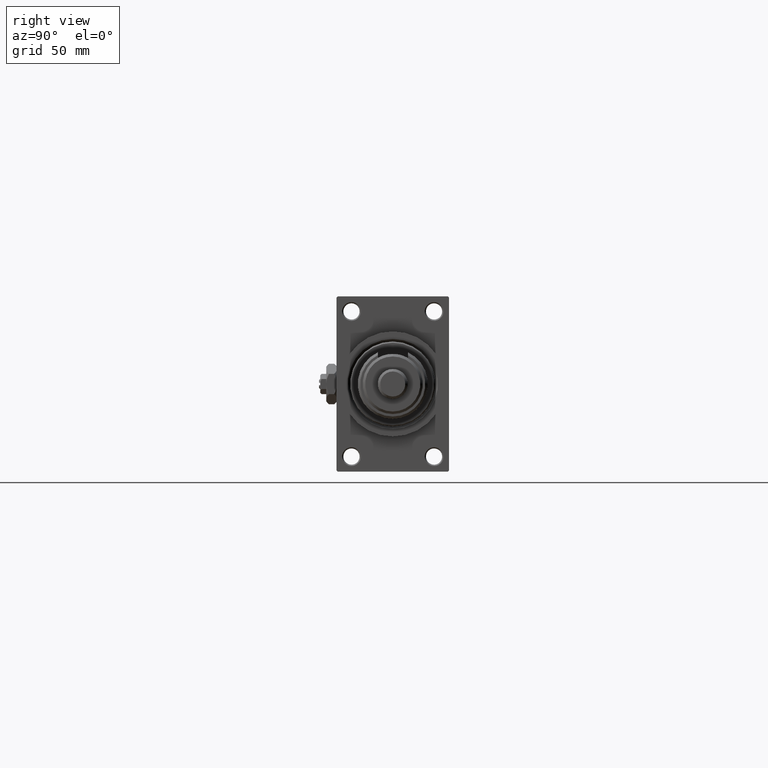
[diagram: clean part render]
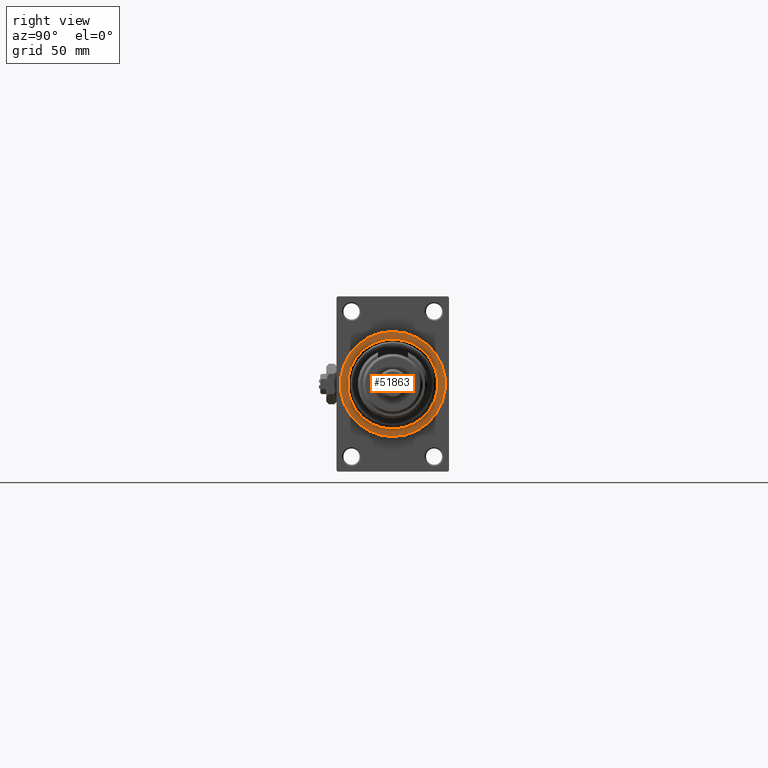
[diagram: same view with one face highlighted and labeled with its STEP entity id]
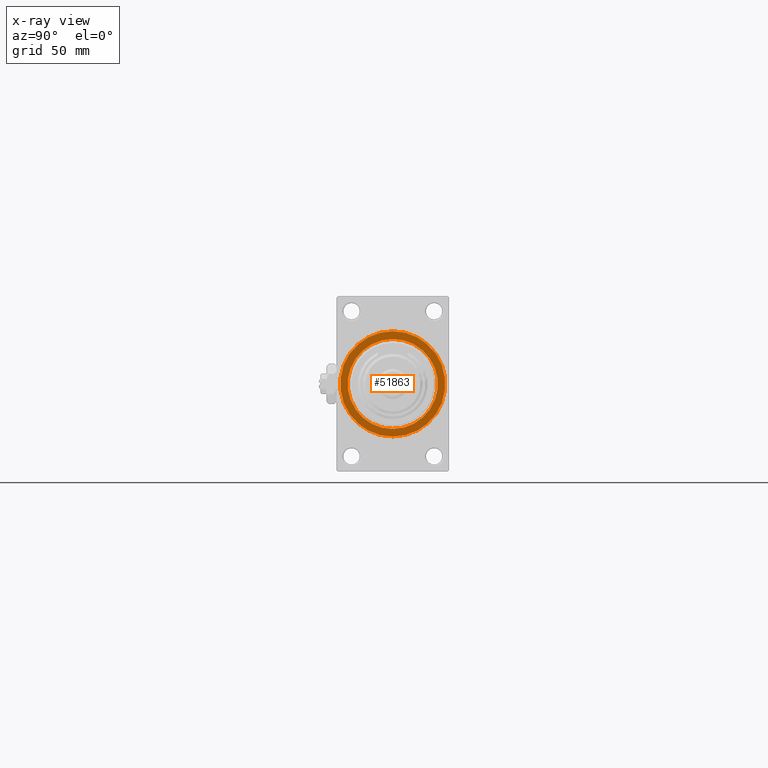
[diagram: x-ray of the same camera — body ghosted, the highlighted face saturated]
A machine part, right view. The second image highlights one B-rep face of the part: STEP entity #51863.
The next image is the same camera in x-ray: the body ghosted, the highlighted face saturated — about 0% of this face is hidden behind the body in this view.
In plain terms, the highlighted planar face has unit normal (1, 0, 0).
Its self-contained STEP definition (entity closure, byte-faithful):
#1512 = VERTEX_POINT ( 'NONE', #48234 ) ;
#1642 = EDGE_CURVE ( 'NONE', #10401, #1512, #5599, .T. ) ;
#2512 = DIRECTION ( 'NONE',  ( 0.000000000000000000, 0.000000000000000000, -1.000000000000000000 ) ) ;
#3147 = CARTESIAN_POINT ( 'NONE',  ( 183.0000000000000284, 0.000000000000000000, 0.000000000000000000 ) ) ;
#3346 = DIRECTION ( 'NONE',  ( 0.000000000000000000, 0.000000000000000000, -1.000000000000000000 ) ) ;
#3763 = VERTEX_POINT ( 'NONE', #41296 ) ;
#4001 = PLANE ( 'NONE',  #12390 ) ;
#4521 = FACE_BOUND ( 'NONE', #39200, .T. ) ;
#5229 = DIRECTION ( 'NONE',  ( -1.000000000000000000, -0.000000000000000000, -0.000000000000000000 ) ) ;
#5599 = CIRCLE ( 'NONE', #24092, 18.00000000000007105 ) ;
#6608 = AXIS2_PLACEMENT_3D ( 'NONE', #27561, #43548, #3346 ) ;
#9507 = EDGE_CURVE ( 'NONE', #15387, #3763, #14165, .T. ) ;
#10401 = VERTEX_POINT ( 'NONE', #51827 ) ;
#10672 = EDGE_CURVE ( 'NONE', #3763, #15387, #29339, .T. ) ;
#10902 = CARTESIAN_POINT ( 'NONE',  ( 183.0000000000000284, 2.571758278209441661E-15, -21.00000000000000000 ) ) ;
#12390 = AXIS2_PLACEMENT_3D ( 'NONE', #47910, #27955, #44714 ) ;
#14068 = ORIENTED_EDGE ( 'NONE', *, *, #9507, .T. ) ;
#14165 = CIRCLE ( 'NONE', #6608, 21.00000000000000000 ) ;
#15387 = VERTEX_POINT ( 'NONE', #10902 ) ;
#15496 = DIRECTION ( 'NONE',  ( 0.000000000000000000, 0.000000000000000000, -1.000000000000000000 ) ) ;
#15672 = ORIENTED_EDGE ( 'NONE', *, *, #47544, .T. ) ;
#16815 = CARTESIAN_POINT ( 'NONE',  ( 183.0000000000000284, 0.000000000000000000, 0.000000000000000000 ) ) ;
#20177 = ORIENTED_EDGE ( 'NONE', *, *, #1642, .T. ) ;
#24092 = AXIS2_PLACEMENT_3D ( 'NONE', #3147, #47829, #15496 ) ;
#27561 = CARTESIAN_POINT ( 'NONE',  ( 183.0000000000000284, 0.000000000000000000, 0.000000000000000000 ) ) ;
#27955 = DIRECTION ( 'NONE',  ( 1.000000000000000000, 0.000000000000000000, 0.000000000000000000 ) ) ;
#29339 = CIRCLE ( 'NONE', #50272, 21.00000000000000000 ) ;
#30665 = EDGE_LOOP ( 'NONE', ( #33784, #14068 ) ) ;
#31895 = FACE_OUTER_BOUND ( 'NONE', #30665, .T. ) ;
#33784 = ORIENTED_EDGE ( 'NONE', *, *, #10672, .T. ) ;
#34069 = CARTESIAN_POINT ( 'NONE',  ( 183.0000000000000284, 0.000000000000000000, 0.000000000000000000 ) ) ;
#35279 = CIRCLE ( 'NONE', #48691, 18.00000000000007105 ) ;
#39200 = EDGE_LOOP ( 'NONE', ( #15672, #20177 ) ) ;
#40462 = DIRECTION ( 'NONE',  ( 0.000000000000000000, 0.000000000000000000, -1.000000000000000000 ) ) ;
#41296 = CARTESIAN_POINT ( 'NONE',  ( 183.0000000000000284, 0.000000000000000000, 21.00000000000000000 ) ) ;
#42436 = DIRECTION ( 'NONE',  ( 1.000000000000000000, 0.000000000000000000, 0.000000000000000000 ) ) ;
#43548 = DIRECTION ( 'NONE',  ( 1.000000000000000000, 0.000000000000000000, 0.000000000000000000 ) ) ;
#44714 = DIRECTION ( 'NONE',  ( 0.000000000000000000, 0.000000000000000000, -1.000000000000000000 ) ) ;
#47544 = EDGE_CURVE ( 'NONE', #1512, #10401, #35279, .T. ) ;
#47829 = DIRECTION ( 'NONE',  ( -1.000000000000000000, -0.000000000000000000, -0.000000000000000000 ) ) ;
#47910 = CARTESIAN_POINT ( 'NONE',  ( 183.0000000000000284, 0.000000000000000000, 0.000000000000000000 ) ) ;
#48234 = CARTESIAN_POINT ( 'NONE',  ( 183.0000000000000284, 0.000000000000000000, -18.00000000000007105 ) ) ;
#48691 = AXIS2_PLACEMENT_3D ( 'NONE', #16815, #5229, #40462 ) ;
#50272 = AXIS2_PLACEMENT_3D ( 'NONE', #34069, #42436, #2512 ) ;
#51827 = CARTESIAN_POINT ( 'NONE',  ( 183.0000000000000284, 2.204364238465244894E-15, 18.00000000000007105 ) ) ;
#51863 = ADVANCED_FACE ( 'NONE', ( #4521, #31895 ), #4001, .T. ) ;